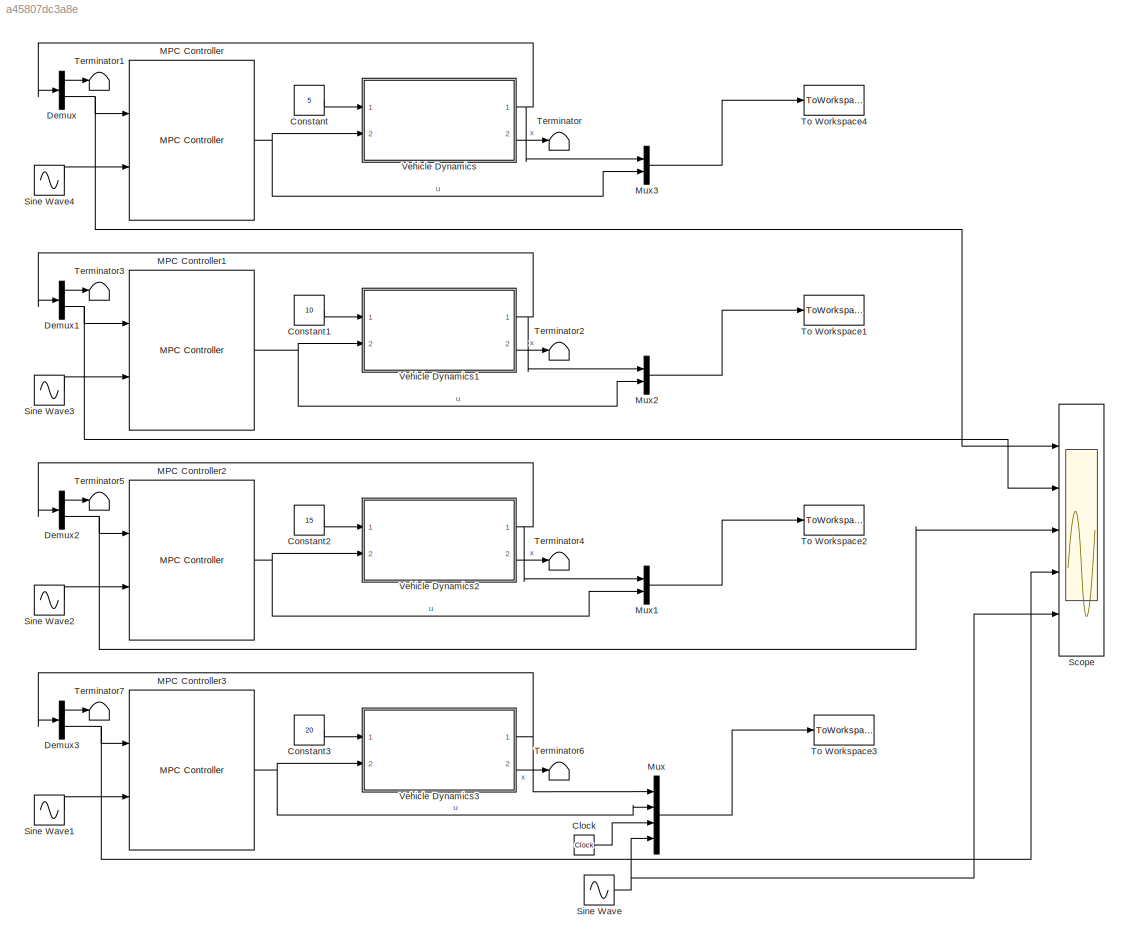
MODEL slx_a45807dc3a8e
KIND model
CONFIG AbsTol = auto
CONFIG EnableMultiTasking = off
CONFIG FixedStep = auto
CONFIG MaxStep = auto
CONFIG MinStep = auto
CONFIG RelTol = 1e-3
CONFIG SampleTimeConstraint = Unconstrained
CONFIG Solver = FixedStepAuto
CONFIG SolverName = FixedStepAuto
CONFIG StartTime = 0.0
CONFIG StopTime = 3
BLOCK [Clock] Clock
BLOCK [Constant] Constant
  Value = 5
BLOCK [Constant] Constant1
  Value = 10
BLOCK [Constant] Constant2
  Value = 15
BLOCK [Constant] Constant3
  Value = 20
BLOCK [Demux] Demux
  DisplayOption = bar
  Outputs = 2
  Ports = [1, 2]
BLOCK [Demux] Demux1
  DisplayOption = bar
  Outputs = 2
  Ports = [1, 2]
BLOCK [Demux] Demux2
  DisplayOption = bar
  Outputs = 2
  Ports = [1, 2]
BLOCK [Demux] Demux3
  DisplayOption = bar
  Outputs = 2
  Ports = [1, 2]
BLOCK [Reference] MPC Controller  REF=mpclib/MPC Controller  (lib defined in mdl_ae329e0e0455)
  Ports = [2, 1]
  SCDEnableBlockLinearizationSpecification = on
  SourceBlock = mpclib/MPC Controller
  SourceProductBaseCode = MP
  SourceProductName = Model Predictive Control Toolbox
  SourceType = MPC
BLOCK [Reference] MPC Controller1  REF=mpclib/MPC Controller  (lib defined in mdl_ae329e0e0455)
  Ports = [2, 1]
  SCDEnableBlockLinearizationSpecification = on
  SourceBlock = mpclib/MPC Controller
  SourceProductBaseCode = MP
  SourceProductName = Model Predictive Control Toolbox
  SourceType = MPC
BLOCK [Reference] MPC Controller2  REF=mpclib/MPC Controller  (lib defined in mdl_ae329e0e0455)
  Ports = [2, 1]
  SCDEnableBlockLinearizationSpecification = on
  SourceBlock = mpclib/MPC Controller
  SourceProductBaseCode = MP
  SourceProductName = Model Predictive Control Toolbox
  SourceType = MPC
BLOCK [Reference] MPC Controller3  REF=mpclib/MPC Controller  (lib defined in mdl_ae329e0e0455)
  Ports = [2, 1]
  SCDEnableBlockLinearizationSpecification = on
  SourceBlock = mpclib/MPC Controller
  SourceProductBaseCode = MP
  SourceProductName = Model Predictive Control Toolbox
  SourceType = MPC
BLOCK [Mux] Mux
  DisplayOption = bar
  Ports = [4, 1]
BLOCK [Mux] Mux1
  DisplayOption = bar
  Inputs = 2
  Ports = [2, 1]
BLOCK [Mux] Mux2
  DisplayOption = bar
  Inputs = 2
  Ports = [2, 1]
BLOCK [Mux] Mux3
  DisplayOption = bar
  Inputs = 2
  Ports = [2, 1]
BLOCK [Scope] Scope
  Floating = off
  NumInputPorts = 5
  Ports = [5]
  ScopeSpecificationString = Simulink.scopes.TimeScopeBlockCfg('CurrentConfiguration', extmgr.ConfigurationSet(extmgr.Configuration('Core','General UI',true),extmgr.Configuration('Core','Source UI',true),extmgr.Configuration('Sources','WiredSimulink',true),extmgr.Configuration('Visuals','Time Domain',true,'SerializedDisplays',{struct('MinYLimReal','-2.85839','MaxYLimReal','2.79339','YLabelReal','','MinYLimMag','0.00000','MaxY...<+1513ch>
BLOCK [Sin] Sine Wave
  Amplitude = 2
  Frequency = 2
  Ports = [0, 1]
  SampleTime = 0
BLOCK [Sin] Sine Wave1
  Amplitude = 2
  Frequency = 2
  Ports = [0, 1]
  SampleTime = 0
BLOCK [Sin] Sine Wave2
  Amplitude = 2
  Frequency = 2
  Ports = [0, 1]
  SampleTime = 0
BLOCK [Sin] Sine Wave3
  Amplitude = 2
  Frequency = 2
  Ports = [0, 1]
  SampleTime = 0
BLOCK [Sin] Sine Wave4
  Amplitude = 2
  Frequency = 2
  Ports = [0, 1]
  SampleTime = 0
BLOCK [Terminator] Terminator
BLOCK [Terminator] Terminator1
BLOCK [Terminator] Terminator2
BLOCK [Terminator] Terminator3
BLOCK [Terminator] Terminator4
BLOCK [Terminator] Terminator5
BLOCK [Terminator] Terminator6
BLOCK [Terminator] Terminator7
BLOCK [ToWorkspace] To Workspace1
  FixptAsFi = on
  MaxDataPoints = inf
  Ports = [1]
  SampleTime = -1
  Save2DSignal = 2-D array (concatenate along first dimension)
  VariableName = mpcsine10ms
BLOCK [ToWorkspace] To Workspace2
  FixptAsFi = on
  MaxDataPoints = inf
  Ports = [1]
  SampleTime = -1
  Save2DSignal = 2-D array (concatenate along first dimension)
  VariableName = mpcsine15ms
BLOCK [ToWorkspace] To Workspace3
  FixptAsFi = on
  MaxDataPoints = inf
  Ports = [1]
  SampleTime = -1
  Save2DSignal = 2-D array (concatenate along first dimension)
  VariableName = mpcsine20ms
BLOCK [ToWorkspace] To Workspace4
  FixptAsFi = on
  MaxDataPoints = inf
  Ports = [1]
  SampleTime = -1
  Save2DSignal = 2-D array (concatenate along first dimension)
  VariableName = mpcsine5ms
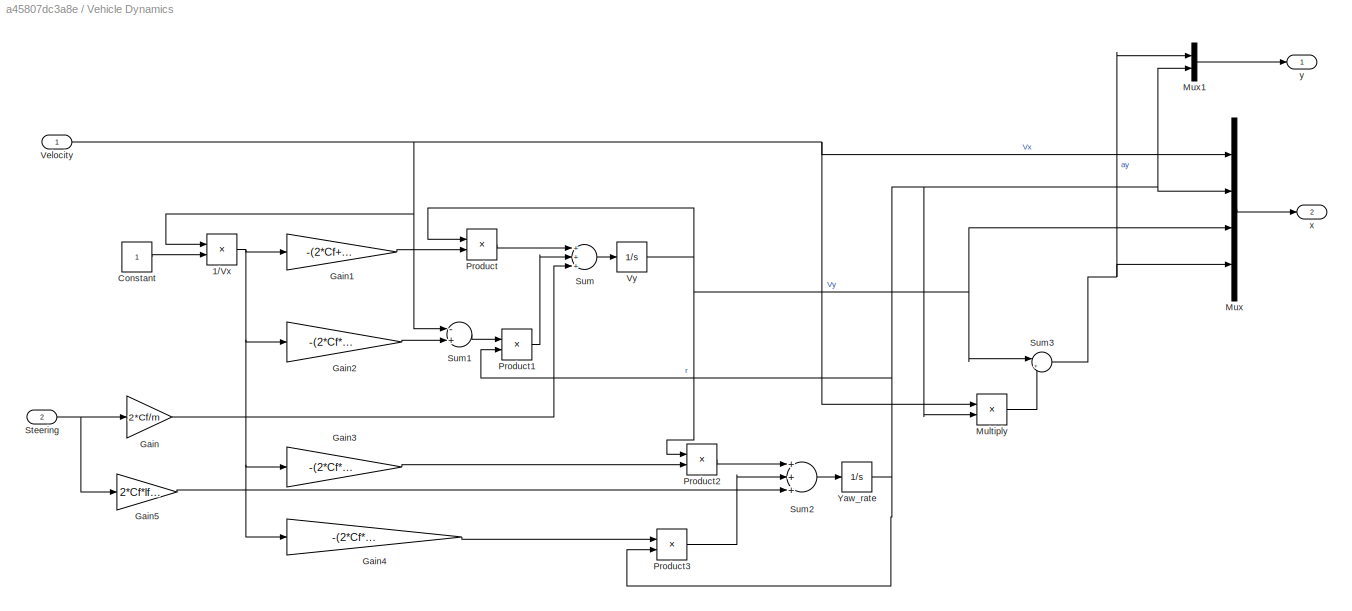
BLOCK [SubSystem] Vehicle Dynamics
  Ports = [2, 2]
  RequestExecContextInheritance = off
BLOCK [Product] Vehicle Dynamics/1//Vx
  InputSameDT = off
  Inputs = /*
  OutDataTypeStr = Inherit: Inherit via internal rule
  Ports = [2, 1]
  RndMeth = Floor
  SaturateOnIntegerOverflow = off
BLOCK [Constant] Vehicle Dynamics/Constant
BLOCK [Gain] Vehicle Dynamics/Gain
  Gain = 2*Cf/m
  OutDataTypeStr = Inherit: Inherit via internal rule
  ParamDataTypeStr = Inherit: Inherit via internal rule
  SaturateOnIntegerOverflow = off
BLOCK [Gain] Vehicle Dynamics/Gain1
  Gain = -(2*Cf+2*Cr)/m
  OutDataTypeStr = Inherit: Inherit via internal rule
  ParamDataTypeStr = Inherit: Inherit via internal rule
  SaturateOnIntegerOverflow = off
BLOCK [Gain] Vehicle Dynamics/Gain2
  Gain = -(2*Cf*lf-2*Cr*lr)/m
  OutDataTypeStr = Inherit: Inherit via internal rule
  ParamDataTypeStr = Inherit: Inherit via internal rule
  SaturateOnIntegerOverflow = off
BLOCK [Gain] Vehicle Dynamics/Gain3
  Gain = -(2*Cf*lf-2*Cr*lr)/Iz
  OutDataTypeStr = Inherit: Inherit via internal rule
  ParamDataTypeStr = Inherit: Inherit via internal rule
  SaturateOnIntegerOverflow = off
BLOCK [Gain] Vehicle Dynamics/Gain4
  Gain = -(2*Cf*lf^2+2*Cr*lr^2)/Iz
  OutDataTypeStr = Inherit: Inherit via internal rule
  ParamDataTypeStr = Inherit: Inherit via internal rule
  SaturateOnIntegerOverflow = off
BLOCK [Gain] Vehicle Dynamics/Gain5
  Gain = 2*Cf*lf/Iz
  OutDataTypeStr = Inherit: Inherit via internal rule
  ParamDataTypeStr = Inherit: Inherit via internal rule
  SaturateOnIntegerOverflow = off
BLOCK [Product] Vehicle Dynamics/Multiply
  InputSameDT = off
  OutDataTypeStr = Inherit: Inherit via internal rule
  Ports = [2, 1]
  RndMeth = Floor
  SaturateOnIntegerOverflow = off
BLOCK [Mux] Vehicle Dynamics/Mux
  DisplayOption = bar
  Ports = [4, 1]
BLOCK [Mux] Vehicle Dynamics/Mux1
  DisplayOption = bar
  Inputs = 2
  Ports = [2, 1]
BLOCK [Product] Vehicle Dynamics/Product
  InputSameDT = off
  OutDataTypeStr = Inherit: Inherit via internal rule
  Ports = [2, 1]
  RndMeth = Floor
  SaturateOnIntegerOverflow = off
BLOCK [Product] Vehicle Dynamics/Product1
  InputSameDT = off
  OutDataTypeStr = Inherit: Inherit via internal rule
  Ports = [2, 1]
  RndMeth = Floor
  SaturateOnIntegerOverflow = off
BLOCK [Product] Vehicle Dynamics/Product2
  InputSameDT = off
  OutDataTypeStr = Inherit: Inherit via internal rule
  Ports = [2, 1]
  RndMeth = Floor
  SaturateOnIntegerOverflow = off
BLOCK [Product] Vehicle Dynamics/Product3
  InputSameDT = off
  OutDataTypeStr = Inherit: Inherit via internal rule
  Ports = [2, 1]
  RndMeth = Floor
  SaturateOnIntegerOverflow = off
BLOCK [Inport] Vehicle Dynamics/Steering
  IconDisplay = Port number
  Port = 2
BLOCK [Sum] Vehicle Dynamics/Sum
  InputSameDT = off
  Inputs = +++
  OutDataTypeStr = Inherit: Inherit via internal rule
  Ports = [3, 1]
  SaturateOnIntegerOverflow = off
BLOCK [Sum] Vehicle Dynamics/Sum1
  InputSameDT = off
  Inputs = -+
  OutDataTypeStr = Inherit: Inherit via internal rule
  Ports = [2, 1]
  SaturateOnIntegerOverflow = off
BLOCK [Sum] Vehicle Dynamics/Sum2
  InputSameDT = off
  Inputs = +++
  OutDataTypeStr = Inherit: Inherit via internal rule
  Ports = [3, 1]
  SaturateOnIntegerOverflow = off
BLOCK [Sum] Vehicle Dynamics/Sum3
  IconShape = round
  InputSameDT = off
  Inputs = |++
  OutDataTypeStr = Inherit: Inherit via internal rule
  Ports = [2, 1]
  SaturateOnIntegerOverflow = off
BLOCK [Inport] Vehicle Dynamics/Velocity
  IconDisplay = Port number
BLOCK [Integrator] Vehicle Dynamics/Vy
  Ports = [1, 1]
BLOCK [Integrator] Vehicle Dynamics/Yaw_rate 
  Ports = [1, 1]
BLOCK [Outport] Vehicle Dynamics/x
  IconDisplay = Port number
  Port = 2
BLOCK [Outport] Vehicle Dynamics/y 
  IconDisplay = Port number
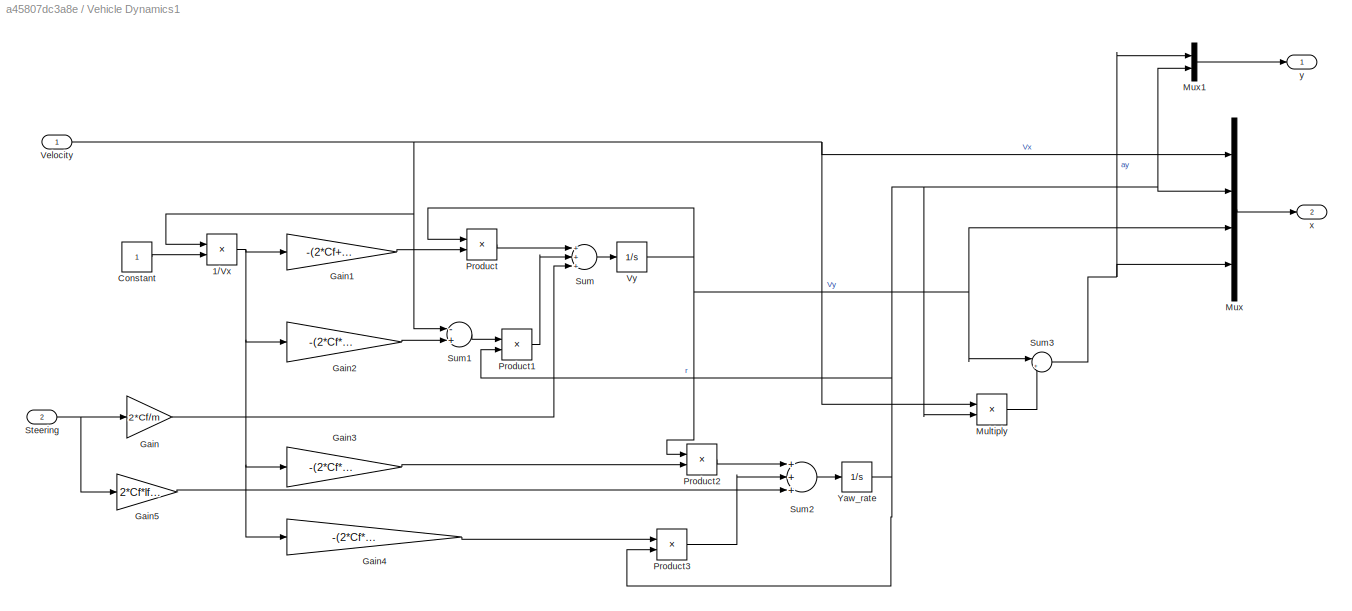
BLOCK [SubSystem] Vehicle Dynamics1
  Ports = [2, 2]
  RequestExecContextInheritance = off
BLOCK [Product] Vehicle Dynamics1/1//Vx
  InputSameDT = off
  Inputs = /*
  OutDataTypeStr = Inherit: Inherit via internal rule
  Ports = [2, 1]
  RndMeth = Floor
  SaturateOnIntegerOverflow = off
BLOCK [Constant] Vehicle Dynamics1/Constant
BLOCK [Gain] Vehicle Dynamics1/Gain
  Gain = 2*Cf/m
  OutDataTypeStr = Inherit: Inherit via internal rule
  ParamDataTypeStr = Inherit: Inherit via internal rule
  SaturateOnIntegerOverflow = off
BLOCK [Gain] Vehicle Dynamics1/Gain1
  Gain = -(2*Cf+2*Cr)/m
  OutDataTypeStr = Inherit: Inherit via internal rule
  ParamDataTypeStr = Inherit: Inherit via internal rule
  SaturateOnIntegerOverflow = off
BLOCK [Gain] Vehicle Dynamics1/Gain2
  Gain = -(2*Cf*lf-2*Cr*lr)/m
  OutDataTypeStr = Inherit: Inherit via internal rule
  ParamDataTypeStr = Inherit: Inherit via internal rule
  SaturateOnIntegerOverflow = off
BLOCK [Gain] Vehicle Dynamics1/Gain3
  Gain = -(2*Cf*lf-2*Cr*lr)/Iz
  OutDataTypeStr = Inherit: Inherit via internal rule
  ParamDataTypeStr = Inherit: Inherit via internal rule
  SaturateOnIntegerOverflow = off
BLOCK [Gain] Vehicle Dynamics1/Gain4
  Gain = -(2*Cf*lf^2+2*Cr*lr^2)/Iz
  OutDataTypeStr = Inherit: Inherit via internal rule
  ParamDataTypeStr = Inherit: Inherit via internal rule
  SaturateOnIntegerOverflow = off
BLOCK [Gain] Vehicle Dynamics1/Gain5
  Gain = 2*Cf*lf/Iz
  OutDataTypeStr = Inherit: Inherit via internal rule
  ParamDataTypeStr = Inherit: Inherit via internal rule
  SaturateOnIntegerOverflow = off
BLOCK [Product] Vehicle Dynamics1/Multiply
  InputSameDT = off
  OutDataTypeStr = Inherit: Inherit via internal rule
  Ports = [2, 1]
  RndMeth = Floor
  SaturateOnIntegerOverflow = off
BLOCK [Mux] Vehicle Dynamics1/Mux
  DisplayOption = bar
  Ports = [4, 1]
BLOCK [Mux] Vehicle Dynamics1/Mux1
  DisplayOption = bar
  Inputs = 2
  Ports = [2, 1]
BLOCK [Product] Vehicle Dynamics1/Product
  InputSameDT = off
  OutDataTypeStr = Inherit: Inherit via internal rule
  Ports = [2, 1]
  RndMeth = Floor
  SaturateOnIntegerOverflow = off
BLOCK [Product] Vehicle Dynamics1/Product1
  InputSameDT = off
  OutDataTypeStr = Inherit: Inherit via internal rule
  Ports = [2, 1]
  RndMeth = Floor
  SaturateOnIntegerOverflow = off
BLOCK [Product] Vehicle Dynamics1/Product2
  InputSameDT = off
  OutDataTypeStr = Inherit: Inherit via internal rule
  Ports = [2, 1]
  RndMeth = Floor
  SaturateOnIntegerOverflow = off
BLOCK [Product] Vehicle Dynamics1/Product3
  InputSameDT = off
  OutDataTypeStr = Inherit: Inherit via internal rule
  Ports = [2, 1]
  RndMeth = Floor
  SaturateOnIntegerOverflow = off
BLOCK [Inport] Vehicle Dynamics1/Steering
  IconDisplay = Port number
  Port = 2
BLOCK [Sum] Vehicle Dynamics1/Sum
  InputSameDT = off
  Inputs = +++
  OutDataTypeStr = Inherit: Inherit via internal rule
  Ports = [3, 1]
  SaturateOnIntegerOverflow = off
BLOCK [Sum] Vehicle Dynamics1/Sum1
  InputSameDT = off
  Inputs = -+
  OutDataTypeStr = Inherit: Inherit via internal rule
  Ports = [2, 1]
  SaturateOnIntegerOverflow = off
BLOCK [Sum] Vehicle Dynamics1/Sum2
  InputSameDT = off
  Inputs = +++
  OutDataTypeStr = Inherit: Inherit via internal rule
  Ports = [3, 1]
  SaturateOnIntegerOverflow = off
BLOCK [Sum] Vehicle Dynamics1/Sum3
  IconShape = round
  InputSameDT = off
  Inputs = |++
  OutDataTypeStr = Inherit: Inherit via internal rule
  Ports = [2, 1]
  SaturateOnIntegerOverflow = off
BLOCK [Inport] Vehicle Dynamics1/Velocity
  IconDisplay = Port number
BLOCK [Integrator] Vehicle Dynamics1/Vy
  Ports = [1, 1]
BLOCK [Integrator] Vehicle Dynamics1/Yaw_rate 
  Ports = [1, 1]
BLOCK [Outport] Vehicle Dynamics1/x
  IconDisplay = Port number
  Port = 2
BLOCK [Outport] Vehicle Dynamics1/y 
  IconDisplay = Port number
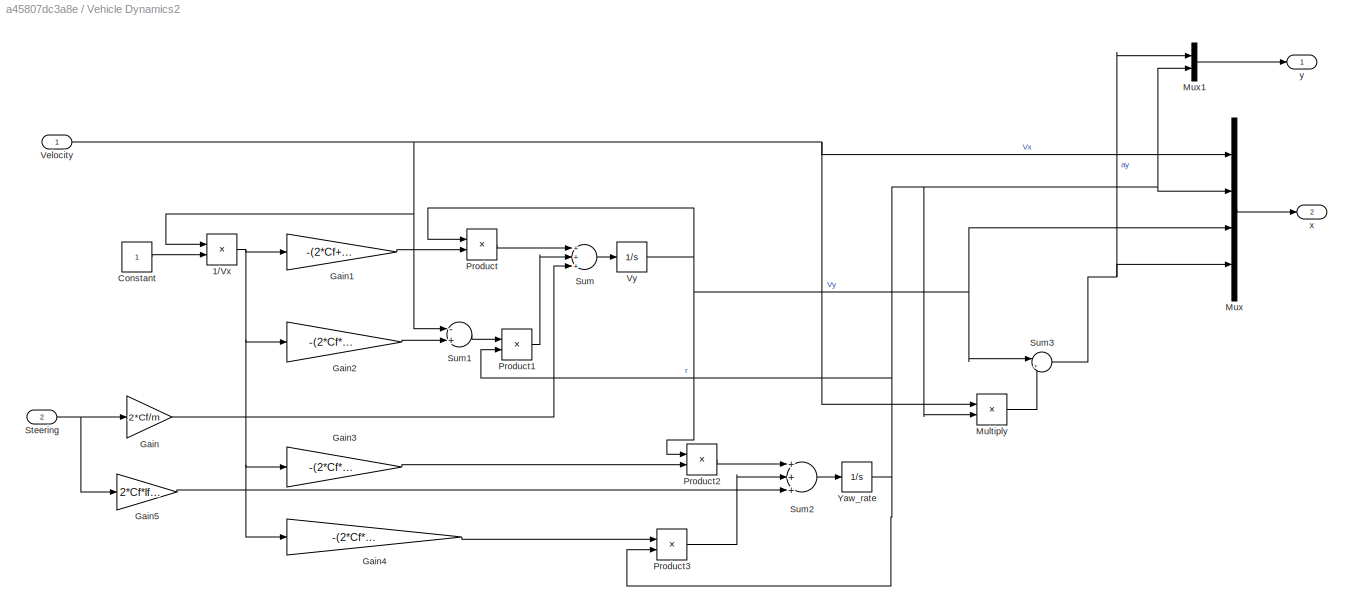
BLOCK [SubSystem] Vehicle Dynamics2
  Ports = [2, 2]
  RequestExecContextInheritance = off
BLOCK [Product] Vehicle Dynamics2/1//Vx
  InputSameDT = off
  Inputs = /*
  OutDataTypeStr = Inherit: Inherit via internal rule
  Ports = [2, 1]
  RndMeth = Floor
  SaturateOnIntegerOverflow = off
BLOCK [Constant] Vehicle Dynamics2/Constant
BLOCK [Gain] Vehicle Dynamics2/Gain
  Gain = 2*Cf/m
  OutDataTypeStr = Inherit: Inherit via internal rule
  ParamDataTypeStr = Inherit: Inherit via internal rule
  SaturateOnIntegerOverflow = off
BLOCK [Gain] Vehicle Dynamics2/Gain1
  Gain = -(2*Cf+2*Cr)/m
  OutDataTypeStr = Inherit: Inherit via internal rule
  ParamDataTypeStr = Inherit: Inherit via internal rule
  SaturateOnIntegerOverflow = off
BLOCK [Gain] Vehicle Dynamics2/Gain2
  Gain = -(2*Cf*lf-2*Cr*lr)/m
  OutDataTypeStr = Inherit: Inherit via internal rule
  ParamDataTypeStr = Inherit: Inherit via internal rule
  SaturateOnIntegerOverflow = off
BLOCK [Gain] Vehicle Dynamics2/Gain3
  Gain = -(2*Cf*lf-2*Cr*lr)/Iz
  OutDataTypeStr = Inherit: Inherit via internal rule
  ParamDataTypeStr = Inherit: Inherit via internal rule
  SaturateOnIntegerOverflow = off
BLOCK [Gain] Vehicle Dynamics2/Gain4
  Gain = -(2*Cf*lf^2+2*Cr*lr^2)/Iz
  OutDataTypeStr = Inherit: Inherit via internal rule
  ParamDataTypeStr = Inherit: Inherit via internal rule
  SaturateOnIntegerOverflow = off
BLOCK [Gain] Vehicle Dynamics2/Gain5
  Gain = 2*Cf*lf/Iz
  OutDataTypeStr = Inherit: Inherit via internal rule
  ParamDataTypeStr = Inherit: Inherit via internal rule
  SaturateOnIntegerOverflow = off
BLOCK [Product] Vehicle Dynamics2/Multiply
  InputSameDT = off
  OutDataTypeStr = Inherit: Inherit via internal rule
  Ports = [2, 1]
  RndMeth = Floor
  SaturateOnIntegerOverflow = off
BLOCK [Mux] Vehicle Dynamics2/Mux
  DisplayOption = bar
  Ports = [4, 1]
BLOCK [Mux] Vehicle Dynamics2/Mux1
  DisplayOption = bar
  Inputs = 2
  Ports = [2, 1]
BLOCK [Product] Vehicle Dynamics2/Product
  InputSameDT = off
  OutDataTypeStr = Inherit: Inherit via internal rule
  Ports = [2, 1]
  RndMeth = Floor
  SaturateOnIntegerOverflow = off
BLOCK [Product] Vehicle Dynamics2/Product1
  InputSameDT = off
  OutDataTypeStr = Inherit: Inherit via internal rule
  Ports = [2, 1]
  RndMeth = Floor
  SaturateOnIntegerOverflow = off
BLOCK [Product] Vehicle Dynamics2/Product2
  InputSameDT = off
  OutDataTypeStr = Inherit: Inherit via internal rule
  Ports = [2, 1]
  RndMeth = Floor
  SaturateOnIntegerOverflow = off
BLOCK [Product] Vehicle Dynamics2/Product3
  InputSameDT = off
  OutDataTypeStr = Inherit: Inherit via internal rule
  Ports = [2, 1]
  RndMeth = Floor
  SaturateOnIntegerOverflow = off
BLOCK [Inport] Vehicle Dynamics2/Steering
  IconDisplay = Port number
  Port = 2
BLOCK [Sum] Vehicle Dynamics2/Sum
  InputSameDT = off
  Inputs = +++
  OutDataTypeStr = Inherit: Inherit via internal rule
  Ports = [3, 1]
  SaturateOnIntegerOverflow = off
BLOCK [Sum] Vehicle Dynamics2/Sum1
  InputSameDT = off
  Inputs = -+
  OutDataTypeStr = Inherit: Inherit via internal rule
  Ports = [2, 1]
  SaturateOnIntegerOverflow = off
BLOCK [Sum] Vehicle Dynamics2/Sum2
  InputSameDT = off
  Inputs = +++
  OutDataTypeStr = Inherit: Inherit via internal rule
  Ports = [3, 1]
  SaturateOnIntegerOverflow = off
BLOCK [Sum] Vehicle Dynamics2/Sum3
  IconShape = round
  InputSameDT = off
  Inputs = |++
  OutDataTypeStr = Inherit: Inherit via internal rule
  Ports = [2, 1]
  SaturateOnIntegerOverflow = off
BLOCK [Inport] Vehicle Dynamics2/Velocity
  IconDisplay = Port number
BLOCK [Integrator] Vehicle Dynamics2/Vy
  Ports = [1, 1]
BLOCK [Integrator] Vehicle Dynamics2/Yaw_rate 
  Ports = [1, 1]
BLOCK [Outport] Vehicle Dynamics2/x
  IconDisplay = Port number
  Port = 2
BLOCK [Outport] Vehicle Dynamics2/y 
  IconDisplay = Port number
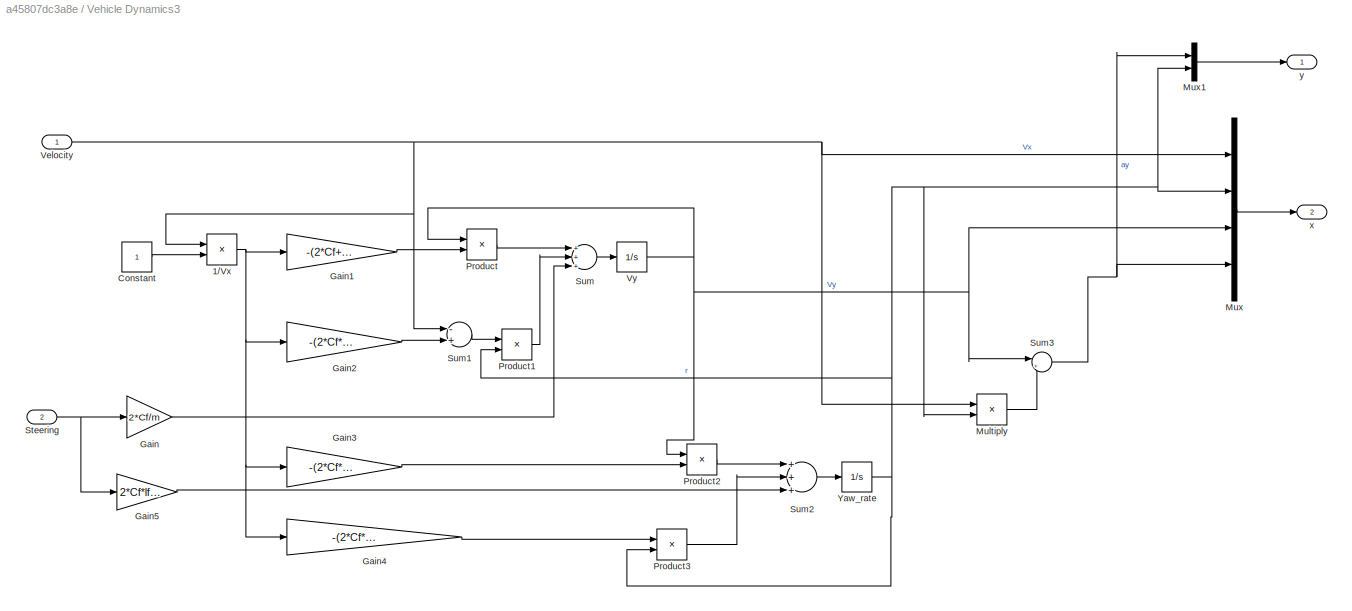
BLOCK [SubSystem] Vehicle Dynamics3
  Ports = [2, 2]
  RequestExecContextInheritance = off
BLOCK [Product] Vehicle Dynamics3/1//Vx
  InputSameDT = off
  Inputs = /*
  OutDataTypeStr = Inherit: Inherit via internal rule
  Ports = [2, 1]
  RndMeth = Floor
  SaturateOnIntegerOverflow = off
BLOCK [Constant] Vehicle Dynamics3/Constant
BLOCK [Gain] Vehicle Dynamics3/Gain
  Gain = 2*Cf/m
  OutDataTypeStr = Inherit: Inherit via internal rule
  ParamDataTypeStr = Inherit: Inherit via internal rule
  SaturateOnIntegerOverflow = off
BLOCK [Gain] Vehicle Dynamics3/Gain1
  Gain = -(2*Cf+2*Cr)/m
  OutDataTypeStr = Inherit: Inherit via internal rule
  ParamDataTypeStr = Inherit: Inherit via internal rule
  SaturateOnIntegerOverflow = off
BLOCK [Gain] Vehicle Dynamics3/Gain2
  Gain = -(2*Cf*lf-2*Cr*lr)/m
  OutDataTypeStr = Inherit: Inherit via internal rule
  ParamDataTypeStr = Inherit: Inherit via internal rule
  SaturateOnIntegerOverflow = off
BLOCK [Gain] Vehicle Dynamics3/Gain3
  Gain = -(2*Cf*lf-2*Cr*lr)/Iz
  OutDataTypeStr = Inherit: Inherit via internal rule
  ParamDataTypeStr = Inherit: Inherit via internal rule
  SaturateOnIntegerOverflow = off
BLOCK [Gain] Vehicle Dynamics3/Gain4
  Gain = -(2*Cf*lf^2+2*Cr*lr^2)/Iz
  OutDataTypeStr = Inherit: Inherit via internal rule
  ParamDataTypeStr = Inherit: Inherit via internal rule
  SaturateOnIntegerOverflow = off
BLOCK [Gain] Vehicle Dynamics3/Gain5
  Gain = 2*Cf*lf/Iz
  OutDataTypeStr = Inherit: Inherit via internal rule
  ParamDataTypeStr = Inherit: Inherit via internal rule
  SaturateOnIntegerOverflow = off
BLOCK [Product] Vehicle Dynamics3/Multiply
  InputSameDT = off
  OutDataTypeStr = Inherit: Inherit via internal rule
  Ports = [2, 1]
  RndMeth = Floor
  SaturateOnIntegerOverflow = off
BLOCK [Mux] Vehicle Dynamics3/Mux
  DisplayOption = bar
  Ports = [4, 1]
BLOCK [Mux] Vehicle Dynamics3/Mux1
  DisplayOption = bar
  Inputs = 2
  Ports = [2, 1]
BLOCK [Product] Vehicle Dynamics3/Product
  InputSameDT = off
  OutDataTypeStr = Inherit: Inherit via internal rule
  Ports = [2, 1]
  RndMeth = Floor
  SaturateOnIntegerOverflow = off
BLOCK [Product] Vehicle Dynamics3/Product1
  InputSameDT = off
  OutDataTypeStr = Inherit: Inherit via internal rule
  Ports = [2, 1]
  RndMeth = Floor
  SaturateOnIntegerOverflow = off
BLOCK [Product] Vehicle Dynamics3/Product2
  InputSameDT = off
  OutDataTypeStr = Inherit: Inherit via internal rule
  Ports = [2, 1]
  RndMeth = Floor
  SaturateOnIntegerOverflow = off
BLOCK [Product] Vehicle Dynamics3/Product3
  InputSameDT = off
  OutDataTypeStr = Inherit: Inherit via internal rule
  Ports = [2, 1]
  RndMeth = Floor
  SaturateOnIntegerOverflow = off
BLOCK [Inport] Vehicle Dynamics3/Steering
  IconDisplay = Port number
  Port = 2
BLOCK [Sum] Vehicle Dynamics3/Sum
  InputSameDT = off
  Inputs = +++
  OutDataTypeStr = Inherit: Inherit via internal rule
  Ports = [3, 1]
  SaturateOnIntegerOverflow = off
BLOCK [Sum] Vehicle Dynamics3/Sum1
  InputSameDT = off
  Inputs = -+
  OutDataTypeStr = Inherit: Inherit via internal rule
  Ports = [2, 1]
  SaturateOnIntegerOverflow = off
BLOCK [Sum] Vehicle Dynamics3/Sum2
  InputSameDT = off
  Inputs = +++
  OutDataTypeStr = Inherit: Inherit via internal rule
  Ports = [3, 1]
  SaturateOnIntegerOverflow = off
BLOCK [Sum] Vehicle Dynamics3/Sum3
  IconShape = round
  InputSameDT = off
  Inputs = |++
  OutDataTypeStr = Inherit: Inherit via internal rule
  Ports = [2, 1]
  SaturateOnIntegerOverflow = off
BLOCK [Inport] Vehicle Dynamics3/Velocity
  IconDisplay = Port number
BLOCK [Integrator] Vehicle Dynamics3/Vy
  Ports = [1, 1]
BLOCK [Integrator] Vehicle Dynamics3/Yaw_rate 
  Ports = [1, 1]
BLOCK [Outport] Vehicle Dynamics3/x
  IconDisplay = Port number
  Port = 2
BLOCK [Outport] Vehicle Dynamics3/y 
  IconDisplay = Port number
LINE Clock:1 -> Mux:3
LINE Constant1:1 -> Vehicle Dynamics1:1
LINE Constant2:1 -> Vehicle Dynamics2:1
LINE Constant3:1 -> Vehicle Dynamics3:1
LINE Constant:1 -> Vehicle Dynamics:1
LINE Demux1:1 -> Terminator3:1
NET Demux1:2 -> MPC Controller1:1, Scope:2
LINE Demux2:1 -> Terminator5:1
NET Demux2:2 -> MPC Controller2:1, Scope:3
LINE Demux3:1 -> Terminator7:1
NET Demux3:2 -> MPC Controller3:1, Scope:4
LINE Demux:1 -> Terminator1:1
NET Demux:2 -> MPC Controller:1, Scope:1
NET MPC Controller1:1 -> Mux2:2, Vehicle Dynamics1:2
NET MPC Controller2:1 -> Mux1:2, Vehicle Dynamics2:2
NET MPC Controller3:1 -> Mux:2, Vehicle Dynamics3:2
NET MPC Controller:1 -> Mux3:2, Vehicle Dynamics:2
LINE Mux1:1 -> To Workspace2:1
LINE Mux2:1 -> To Workspace1:1
LINE Mux3:1 -> To Workspace4:1
LINE Mux:1 -> To Workspace3:1
LINE Sine Wave1:1 -> MPC Controller3:2
LINE Sine Wave2:1 -> MPC Controller2:2
LINE Sine Wave3:1 -> MPC Controller1:2
LINE Sine Wave4:1 -> MPC Controller:2
NET Sine Wave:1 -> Mux:4, Scope:5
NET Vehicle Dynamics/1//Vx:1 -> Vehicle Dynamics/Gain1:1, Vehicle Dynamics/Gain2:1, Vehicle Dynamics/Gain3:1, Vehicle Dynamics/Gain4:1
LINE Vehicle Dynamics/Constant:1 -> Vehicle Dynamics/1//Vx:2
LINE Vehicle Dynamics/Gain1:1 -> Vehicle Dynamics/Product:2
LINE Vehicle Dynamics/Gain2:1 -> Vehicle Dynamics/Sum1:2
LINE Vehicle Dynamics/Gain3:1 -> Vehicle Dynamics/Product2:2
LINE Vehicle Dynamics/Gain4:1 -> Vehicle Dynamics/Product3:1
LINE Vehicle Dynamics/Gain5:1 -> Vehicle Dynamics/Sum2:3
LINE Vehicle Dynamics/Gain:1 -> Vehicle Dynamics/Sum:3
LINE Vehicle Dynamics/Multiply:1 -> Vehicle Dynamics/Sum3:2
LINE Vehicle Dynamics/Mux1:1 -> Vehicle Dynamics/y :1
LINE Vehicle Dynamics/Mux:1 -> Vehicle Dynamics/x:1
LINE Vehicle Dynamics/Product1:1 -> Vehicle Dynamics/Sum:2
LINE Vehicle Dynamics/Product2:1 -> Vehicle Dynamics/Sum2:1
LINE Vehicle Dynamics/Product3:1 -> Vehicle Dynamics/Sum2:2
LINE Vehicle Dynamics/Product:1 -> Vehicle Dynamics/Sum:1
NET Vehicle Dynamics/Steering:1 -> Vehicle Dynamics/Gain5:1, Vehicle Dynamics/Gain:1
LINE Vehicle Dynamics/Sum1:1 -> Vehicle Dynamics/Product1:1
LINE Vehicle Dynamics/Sum2:1 -> Vehicle Dynamics/Yaw_rate :1
NET Vehicle Dynamics/Sum3:1 -> Vehicle Dynamics/Mux1:1, Vehicle Dynamics/Mux:4
LINE Vehicle Dynamics/Sum:1 -> Vehicle Dynamics/Vy:1
NET Vehicle Dynamics/Velocity:1 -> Vehicle Dynamics/1//Vx:1, Vehicle Dynamics/Multiply:1, Vehicle Dynamics/Mux:1, Vehicle Dynamics/Sum1:1
NET Vehicle Dynamics/Vy:1 -> Vehicle Dynamics/Mux:3, Vehicle Dynamics/Product2:1, Vehicle Dynamics/Product:1, Vehicle Dynamics/Sum3:1
NET Vehicle Dynamics/Yaw_rate :1 -> Vehicle Dynamics/Multiply:2, Vehicle Dynamics/Mux1:2, Vehicle Dynamics/Mux:2, Vehicle Dynamics/Product1:2, Vehicle Dynamics/Product3:2
NET Vehicle Dynamics1/1//Vx:1 -> Vehicle Dynamics1/Gain1:1, Vehicle Dynamics1/Gain2:1, Vehicle Dynamics1/Gain3:1, Vehicle Dynamics1/Gain4:1
LINE Vehicle Dynamics1/Constant:1 -> Vehicle Dynamics1/1//Vx:2
LINE Vehicle Dynamics1/Gain1:1 -> Vehicle Dynamics1/Product:2
LINE Vehicle Dynamics1/Gain2:1 -> Vehicle Dynamics1/Sum1:2
LINE Vehicle Dynamics1/Gain3:1 -> Vehicle Dynamics1/Product2:2
LINE Vehicle Dynamics1/Gain4:1 -> Vehicle Dynamics1/Product3:1
LINE Vehicle Dynamics1/Gain5:1 -> Vehicle Dynamics1/Sum2:3
LINE Vehicle Dynamics1/Gain:1 -> Vehicle Dynamics1/Sum:3
LINE Vehicle Dynamics1/Multiply:1 -> Vehicle Dynamics1/Sum3:2
LINE Vehicle Dynamics1/Mux1:1 -> Vehicle Dynamics1/y :1
LINE Vehicle Dynamics1/Mux:1 -> Vehicle Dynamics1/x:1
LINE Vehicle Dynamics1/Product1:1 -> Vehicle Dynamics1/Sum:2
LINE Vehicle Dynamics1/Product2:1 -> Vehicle Dynamics1/Sum2:1
LINE Vehicle Dynamics1/Product3:1 -> Vehicle Dynamics1/Sum2:2
LINE Vehicle Dynamics1/Product:1 -> Vehicle Dynamics1/Sum:1
NET Vehicle Dynamics1/Steering:1 -> Vehicle Dynamics1/Gain5:1, Vehicle Dynamics1/Gain:1
LINE Vehicle Dynamics1/Sum1:1 -> Vehicle Dynamics1/Product1:1
LINE Vehicle Dynamics1/Sum2:1 -> Vehicle Dynamics1/Yaw_rate :1
NET Vehicle Dynamics1/Sum3:1 -> Vehicle Dynamics1/Mux1:1, Vehicle Dynamics1/Mux:4
LINE Vehicle Dynamics1/Sum:1 -> Vehicle Dynamics1/Vy:1
NET Vehicle Dynamics1/Velocity:1 -> Vehicle Dynamics1/1//Vx:1, Vehicle Dynamics1/Multiply:1, Vehicle Dynamics1/Mux:1, Vehicle Dynamics1/Sum1:1
NET Vehicle Dynamics1/Vy:1 -> Vehicle Dynamics1/Mux:3, Vehicle Dynamics1/Product2:1, Vehicle Dynamics1/Product:1, Vehicle Dynamics1/Sum3:1
NET Vehicle Dynamics1/Yaw_rate :1 -> Vehicle Dynamics1/Multiply:2, Vehicle Dynamics1/Mux1:2, Vehicle Dynamics1/Mux:2, Vehicle Dynamics1/Product1:2, Vehicle Dynamics1/Product3:2
NET Vehicle Dynamics1:1 -> Demux1:1, Mux2:1
LINE Vehicle Dynamics1:2 -> Terminator2:1
NET Vehicle Dynamics2/1//Vx:1 -> Vehicle Dynamics2/Gain1:1, Vehicle Dynamics2/Gain2:1, Vehicle Dynamics2/Gain3:1, Vehicle Dynamics2/Gain4:1
LINE Vehicle Dynamics2/Constant:1 -> Vehicle Dynamics2/1//Vx:2
LINE Vehicle Dynamics2/Gain1:1 -> Vehicle Dynamics2/Product:2
LINE Vehicle Dynamics2/Gain2:1 -> Vehicle Dynamics2/Sum1:2
LINE Vehicle Dynamics2/Gain3:1 -> Vehicle Dynamics2/Product2:2
LINE Vehicle Dynamics2/Gain4:1 -> Vehicle Dynamics2/Product3:1
LINE Vehicle Dynamics2/Gain5:1 -> Vehicle Dynamics2/Sum2:3
LINE Vehicle Dynamics2/Gain:1 -> Vehicle Dynamics2/Sum:3
LINE Vehicle Dynamics2/Multiply:1 -> Vehicle Dynamics2/Sum3:2
LINE Vehicle Dynamics2/Mux1:1 -> Vehicle Dynamics2/y :1
LINE Vehicle Dynamics2/Mux:1 -> Vehicle Dynamics2/x:1
LINE Vehicle Dynamics2/Product1:1 -> Vehicle Dynamics2/Sum:2
LINE Vehicle Dynamics2/Product2:1 -> Vehicle Dynamics2/Sum2:1
LINE Vehicle Dynamics2/Product3:1 -> Vehicle Dynamics2/Sum2:2
LINE Vehicle Dynamics2/Product:1 -> Vehicle Dynamics2/Sum:1
NET Vehicle Dynamics2/Steering:1 -> Vehicle Dynamics2/Gain5:1, Vehicle Dynamics2/Gain:1
LINE Vehicle Dynamics2/Sum1:1 -> Vehicle Dynamics2/Product1:1
LINE Vehicle Dynamics2/Sum2:1 -> Vehicle Dynamics2/Yaw_rate :1
NET Vehicle Dynamics2/Sum3:1 -> Vehicle Dynamics2/Mux1:1, Vehicle Dynamics2/Mux:4
LINE Vehicle Dynamics2/Sum:1 -> Vehicle Dynamics2/Vy:1
NET Vehicle Dynamics2/Velocity:1 -> Vehicle Dynamics2/1//Vx:1, Vehicle Dynamics2/Multiply:1, Vehicle Dynamics2/Mux:1, Vehicle Dynamics2/Sum1:1
NET Vehicle Dynamics2/Vy:1 -> Vehicle Dynamics2/Mux:3, Vehicle Dynamics2/Product2:1, Vehicle Dynamics2/Product:1, Vehicle Dynamics2/Sum3:1
NET Vehicle Dynamics2/Yaw_rate :1 -> Vehicle Dynamics2/Multiply:2, Vehicle Dynamics2/Mux1:2, Vehicle Dynamics2/Mux:2, Vehicle Dynamics2/Product1:2, Vehicle Dynamics2/Product3:2
NET Vehicle Dynamics2:1 -> Demux2:1, Mux1:1
LINE Vehicle Dynamics2:2 -> Terminator4:1
NET Vehicle Dynamics3/1//Vx:1 -> Vehicle Dynamics3/Gain1:1, Vehicle Dynamics3/Gain2:1, Vehicle Dynamics3/Gain3:1, Vehicle Dynamics3/Gain4:1
LINE Vehicle Dynamics3/Constant:1 -> Vehicle Dynamics3/1//Vx:2
LINE Vehicle Dynamics3/Gain1:1 -> Vehicle Dynamics3/Product:2
LINE Vehicle Dynamics3/Gain2:1 -> Vehicle Dynamics3/Sum1:2
LINE Vehicle Dynamics3/Gain3:1 -> Vehicle Dynamics3/Product2:2
LINE Vehicle Dynamics3/Gain4:1 -> Vehicle Dynamics3/Product3:1
LINE Vehicle Dynamics3/Gain5:1 -> Vehicle Dynamics3/Sum2:3
LINE Vehicle Dynamics3/Gain:1 -> Vehicle Dynamics3/Sum:3
LINE Vehicle Dynamics3/Multiply:1 -> Vehicle Dynamics3/Sum3:2
LINE Vehicle Dynamics3/Mux1:1 -> Vehicle Dynamics3/y :1
LINE Vehicle Dynamics3/Mux:1 -> Vehicle Dynamics3/x:1
LINE Vehicle Dynamics3/Product1:1 -> Vehicle Dynamics3/Sum:2
LINE Vehicle Dynamics3/Product2:1 -> Vehicle Dynamics3/Sum2:1
LINE Vehicle Dynamics3/Product3:1 -> Vehicle Dynamics3/Sum2:2
LINE Vehicle Dynamics3/Product:1 -> Vehicle Dynamics3/Sum:1
NET Vehicle Dynamics3/Steering:1 -> Vehicle Dynamics3/Gain5:1, Vehicle Dynamics3/Gain:1
LINE Vehicle Dynamics3/Sum1:1 -> Vehicle Dynamics3/Product1:1
LINE Vehicle Dynamics3/Sum2:1 -> Vehicle Dynamics3/Yaw_rate :1
NET Vehicle Dynamics3/Sum3:1 -> Vehicle Dynamics3/Mux1:1, Vehicle Dynamics3/Mux:4
LINE Vehicle Dynamics3/Sum:1 -> Vehicle Dynamics3/Vy:1
NET Vehicle Dynamics3/Velocity:1 -> Vehicle Dynamics3/1//Vx:1, Vehicle Dynamics3/Multiply:1, Vehicle Dynamics3/Mux:1, Vehicle Dynamics3/Sum1:1
NET Vehicle Dynamics3/Vy:1 -> Vehicle Dynamics3/Mux:3, Vehicle Dynamics3/Product2:1, Vehicle Dynamics3/Product:1, Vehicle Dynamics3/Sum3:1
NET Vehicle Dynamics3/Yaw_rate :1 -> Vehicle Dynamics3/Multiply:2, Vehicle Dynamics3/Mux1:2, Vehicle Dynamics3/Mux:2, Vehicle Dynamics3/Product1:2, Vehicle Dynamics3/Product3:2
NET Vehicle Dynamics3:1 -> Demux3:1, Mux:1
LINE Vehicle Dynamics3:2 -> Terminator6:1
NET Vehicle Dynamics:1 -> Demux:1, Mux3:1
LINE Vehicle Dynamics:2 -> Terminator:1
note: NET lines group one-source signal fan-out (src -> all destinations, sorted); 1:1 wires keep LINE
